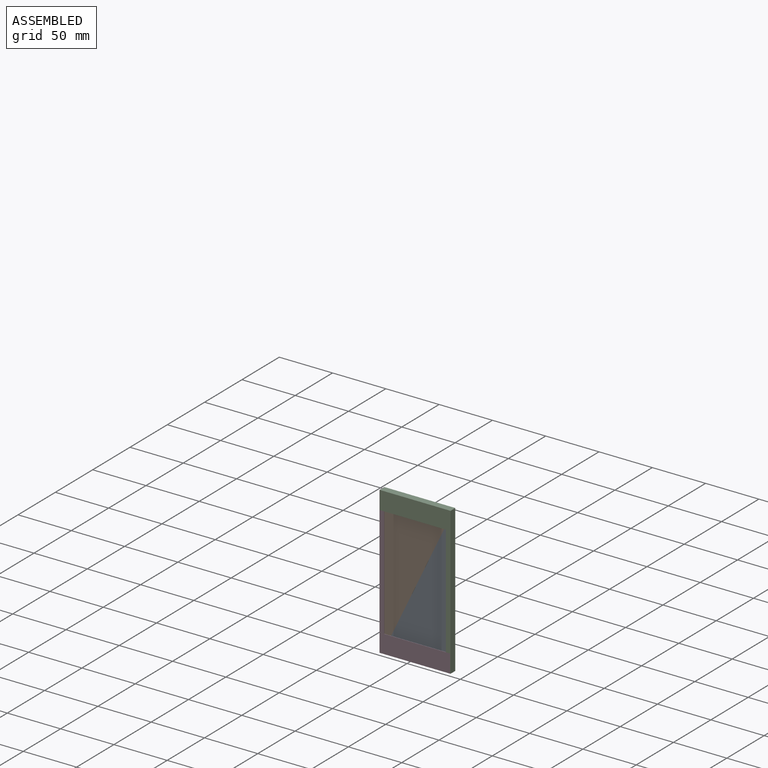
[diagram: assembled view]
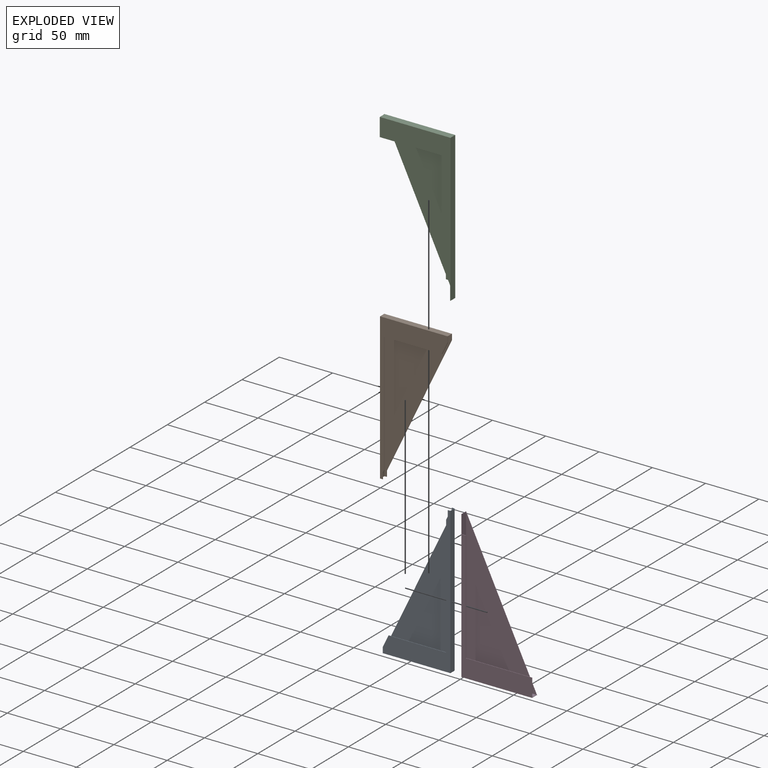
[diagram: exploded view]
GUIDED TOUR — MATED ASSEMBLY (Onshape document 7e31d5cf3b3139a9da430574, AutoMate assembly 7e31d5cf3b3139a9da430574_ac3683a69b79a58ec61ef6b6_3bb154a2da91457d426882a9_default)

This assembly has 4 components, labeled P0..P3 below (a component is one placed occurrence of a part; the same part can appear more than once), held together by 4 mates. A mate is a constraint between two components; its type names the relative motion it leaves free:
  SLIDER — leaves translation along the listed axis free.
Axis/direction vectors are unit vectors and 'through' points are millimeter coordinates, both in the assembly's world frame.

MATES
  1. SLIDER "Slider 4": P0 <-> P2, axis (0.000, 0.000, 1.000) through (40.66, 2.95, 66.40) mm
  2. SLIDER "Slider 2": P0 <-> P3, axis (-1.000, 0.000, 0.000) through (-22.83, 2.95, -71.14) mm
  3. SLIDER "Slider 1": P1 <-> P3, axis (0.000, 0.000, -1.000) through (-25.37, 2.95, -71.14) mm
  4. SLIDER "Slider 3": P1 <-> P2, axis (1.000, 0.000, 0.000) through (38.12, 2.95, 66.40) mm

ASSEMBLY ORDER
  1. P0 — the base component [order heuristic]
  2. P3 [order verified]
  3. P1 — core [order heuristic]
  4. P2 — core [order heuristic]
Order-tag legend:
  [order verified] — this step's position reverses a verified removal order: the component was checked to insert without passing through the ones already placed.
  [order heuristic] — the first 3 components form the assembly's core: parts whose collision-free extraction could not be verified, listed in mate-graph order.

Of the 4 components, 4 carry the full construction recipe — the FeatureScript program that regenerates the part's solid from scratch; the rest are supplied as boundary geometry only.
Each toured component is shown spotlighted twice — in the assembled view, then in the exploded view, where a leader line traces a displaced component back to its assembled socket (saturated green if recipe-attached, orange if geometry-only; every other component desaturated gray) — followed by its recipe or geometry summary and the mates that hold it.
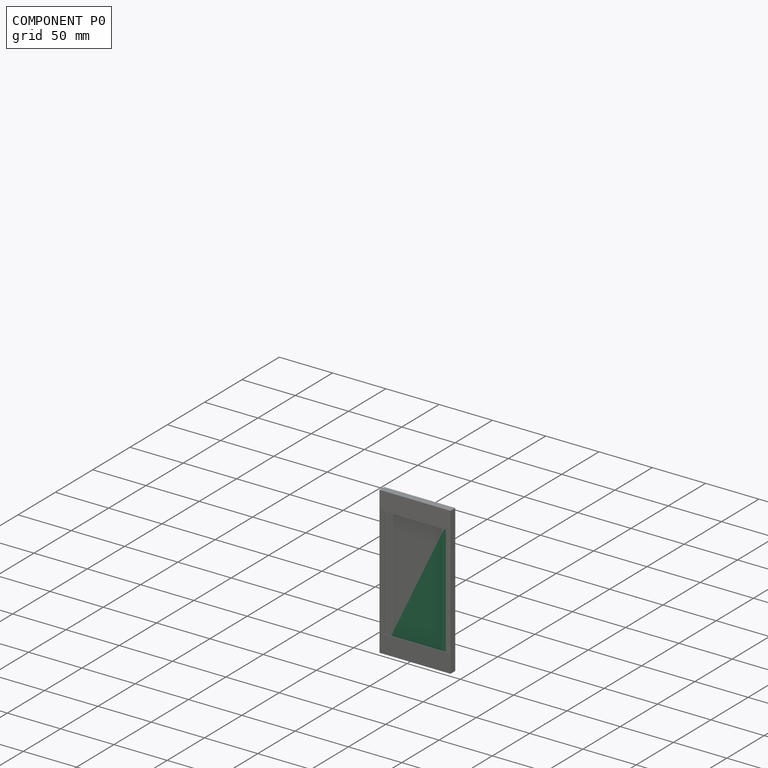
[diagram: component P0 — assembled]
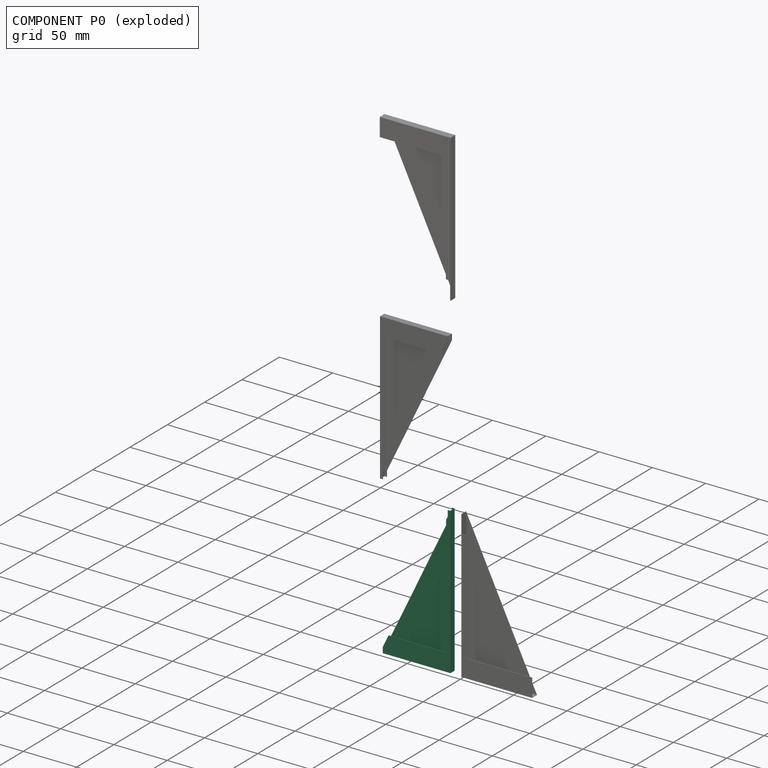
[diagram: component P0 — exploded]
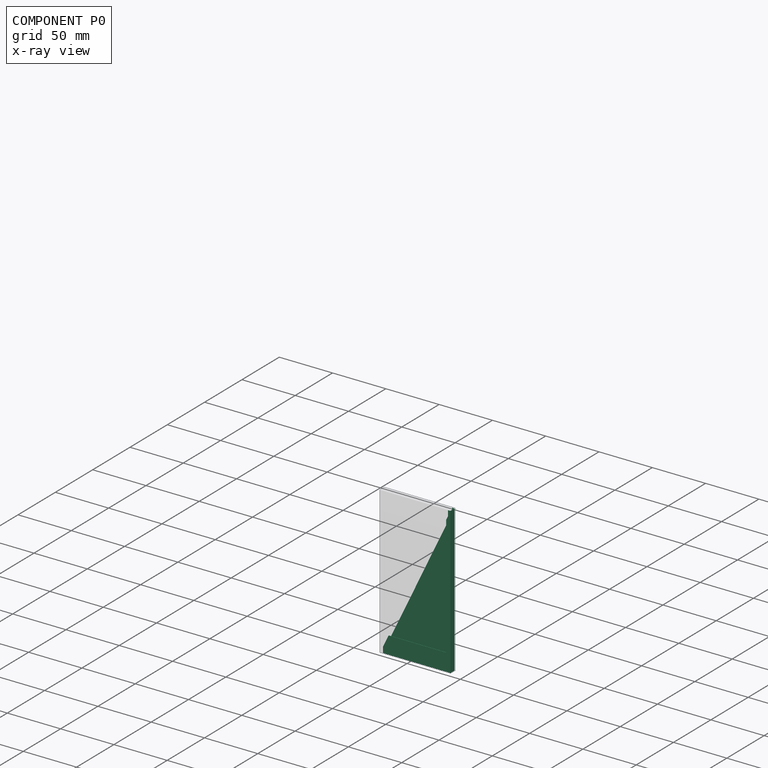
[diagram: component P0 — x-ray view]
COMPONENT P0 — recipe-attached (CADFS 00390571, mesh-verified: the recipe's output STEP matches this component's geometry to below the mesh-comparison resolution (tessellation chordal tolerance ~0.227 mm)).
Held by: SLIDER mate "Slider 4" to P2; SLIDER mate "Slider 2" to P3.
Construction recipe (FeatureScript — the CAD program that rebuilds this solid; sketch coordinates are in the units given by the * unit suffixes, e.g. mm):

FeatureScript 1511;
import(path : "onshape/std/geometry.fs", version : "1511.0");
import(path : "onshape/std/common.fs", version : "1511.0");
const mm = millimeter;
const VERTEX = EntityType.VERTEX;
const EDGE = EntityType.EDGE;
const FACE = EntityType.FACE;
const BODY = EntityType.BODY;
function v(x, y){return vector(x, y);}
function OD(order){return orderDisambiguation(order);}
function OSD(set){return originalSetDisambiguation(set);}
function TD(topology){return topologyDisambiguation(topology);}
function TDD(query){return trueDependencyDisambiguation(query);}
function sQuery(a, b, c) {return sketchEntityQuery(a, b, c);}

annotation { "Feature Type Name" : "Feature", "Feature Type Description" : "" }
export const myFeature = defineFeature(function(context is Context, id is Id, definition is map)
    precondition{}
    {
        {
            var Q0;
            Q0=qCreatedBy(makeId("Front.planeOp"),FACE);
            var sketch = newSketch(context, id + "F0", { "sketchPlane" : qUnion([Q0])});
            skLineSegment(sketch, "E0.top", {"start": v(-33.17, 68.77) * mm, "end": v(30.31, 68.77) * mm});
            skLineSegment(sketch, "E0.left", {"start": v(-33.17, -68.77) * mm, "end": v(-33.17, 68.77) * mm});
            skLineSegment(sketch, "E1", {"start": v(-30.63, -63.48) * mm, "end": v(30.31, 63.5) * mm});
            skLineSegment(sketch, "E2", {"start": v(-33.17, -68.77) * mm, "end": v(-30.63, -68.77) * mm});
            skLineSegment(sketch, "E3", {"start": v(-30.63, -68.77) * mm, "end": v(-30.63, -63.48) * mm});
            skLineSegment(sketch, "E4", {"start": v(30.31, 68.77) * mm, "end": v(30.31, 63.5) * mm});
            skSolve(sketch);
        }
        {
            var Q0;
            Q0 = qSketchRegion(id + "F0", true);
            extrude(context, id + "F1", {"entities" : qUnion([Q0]), "depth" : 5.7 * mm});
        }
        {
            var Q0;
            Q0=makeQuery(id+"F1.opExtrude","CAP_FACE",FACE,{"disambiguationData":[OSD([sQuery(id+"F0.wireOp",EDGE,"E0.top"),sQuery(id+"F0.wireOp",EDGE,"E0.left"),sQuery(id+"F0.wireOp",EDGE,"E1"),sQuery(id+"F0.wireOp",EDGE,"E2"),sQuery(id+"F0.wireOp",EDGE,"E3"),sQuery(id+"F0.wireOp",EDGE,"E4")])],"isStart":false});
            var sketch = newSketch(context, id + "F2", { "sketchPlane" : qUnion([Q0])});
            skLineSegment(sketch, "E5.bottom", {"start": v(-29.18, 52.29) * mm, "end": v(24.93, 52.29) * mm});
            skLineSegment(sketch, "E5.left", {"start": v(-29.18, 52.29) * mm, "end": v(-29.18, -60.45) * mm});
            skLineSegment(sketch, "E6", {"start": v(24.93, 52.29) * mm, "end": v(-29.18, -60.45) * mm});
            skSolve(sketch);
        }
        {
            var Q0;
            Q0 = qSketchRegion(id + "F2", true);
            extrude(context, id + "F3", {"entities" : qUnion([Q0]), "operationType" : NewBodyOperationType.REMOVE, "oppositeDirection" : true, "depth" : 5.4 * mm});
        }
        {
            var Q0;
            Q0=makeQuery(id+"F1.opExtrude","SWEPT_FACE",FACE,{"disambiguationData":[OSD([sQuery(id+"F0.wireOp",EDGE,"E4")])]});
            var sketch = newSketch(context, id + "F4", { "sketchPlane" : qUnion([Q0])});
            skLineSegment(sketch, "E7.bottom", {"start": v(-5.4, 68.45) * mm, "end": v(-0.32, 68.45) * mm});
            skLineSegment(sketch, "E7.top", {"start": v(-5.4, -68.77) * mm, "end": v(-0.32, -68.77) * mm});
            skLineSegment(sketch, "E7.left", {"start": v(-5.4, 68.45) * mm, "end": v(-5.4, -68.77) * mm});
            skLineSegment(sketch, "E7.right", {"start": v(-0.32, 68.45) * mm, "end": v(-0.32, -68.77) * mm});
            skSolve(sketch);
        }
        {
            var Q0;
            Q0 = qSketchRegion(id + "F4", true);
            extrude(context, id + "F5", {"entities" : qUnion([Q0]), "operationType" : NewBodyOperationType.REMOVE, "oppositeDirection" : true, "depth" : 63.17 * mm});
        }
    });
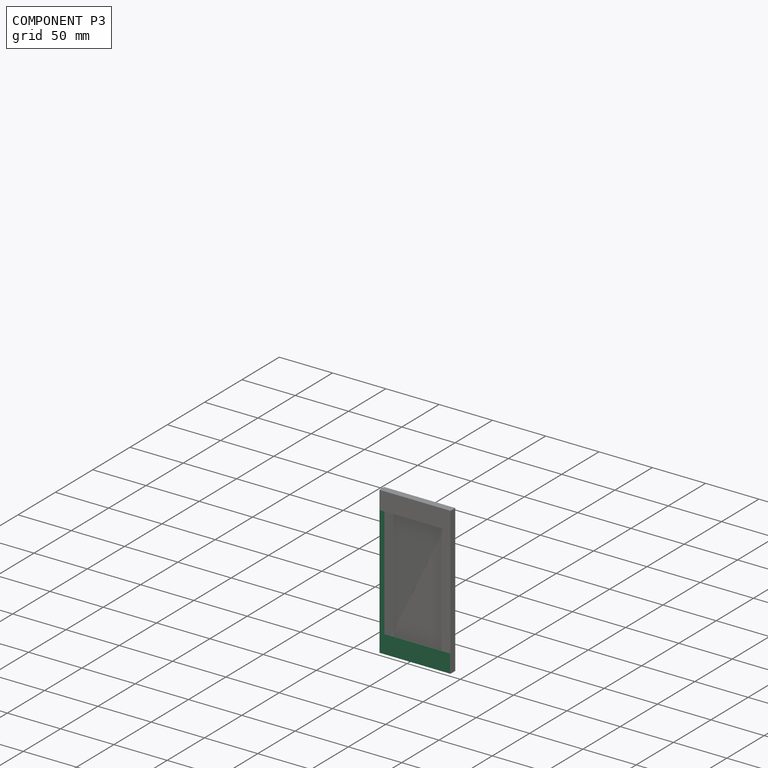
[diagram: component P3 — assembled]
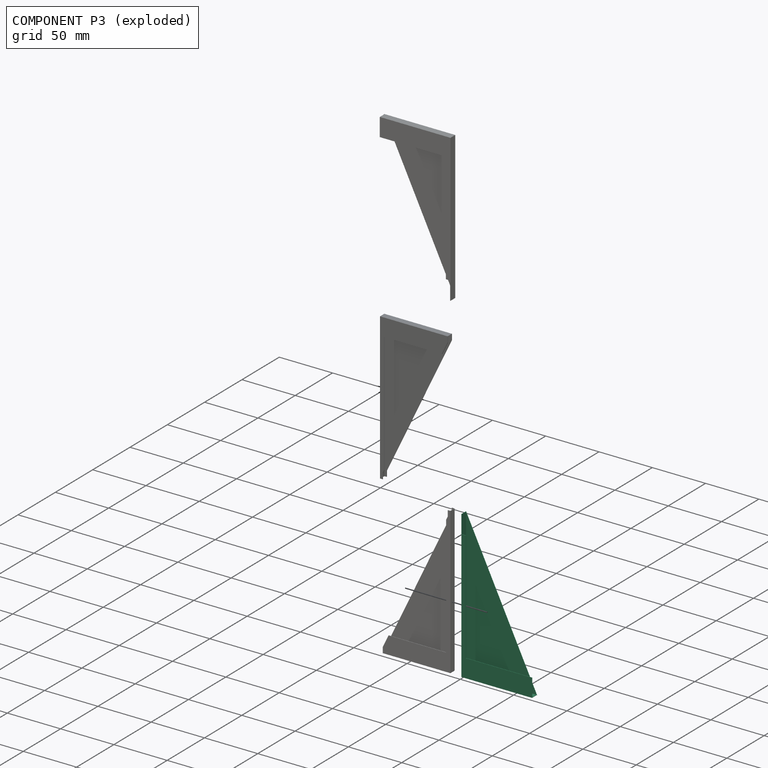
[diagram: component P3 — exploded]
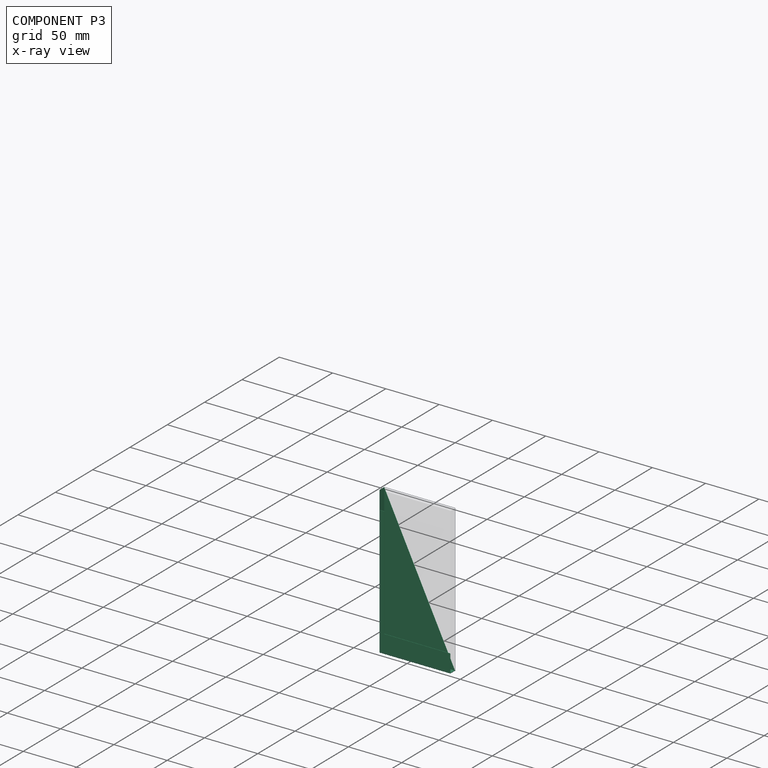
[diagram: component P3 — x-ray view]
COMPONENT P3 — same part as P2 (CADFS 00390570); its construction recipe is shown at P2.
Held by: SLIDER mate "Slider 2" to P0; SLIDER mate "Slider 1" to P1.
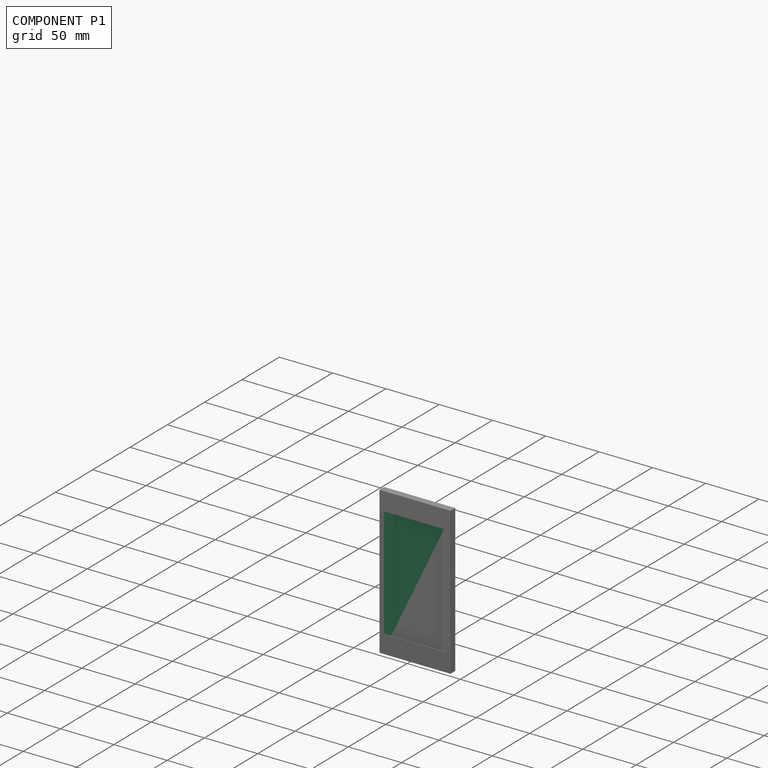
[diagram: component P1 — assembled]
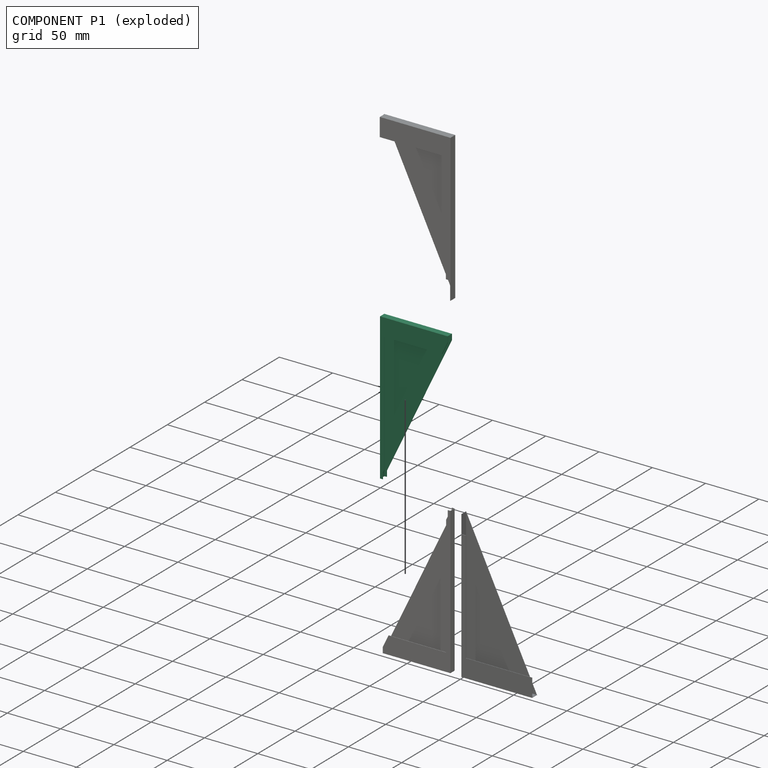
[diagram: component P1 — exploded]
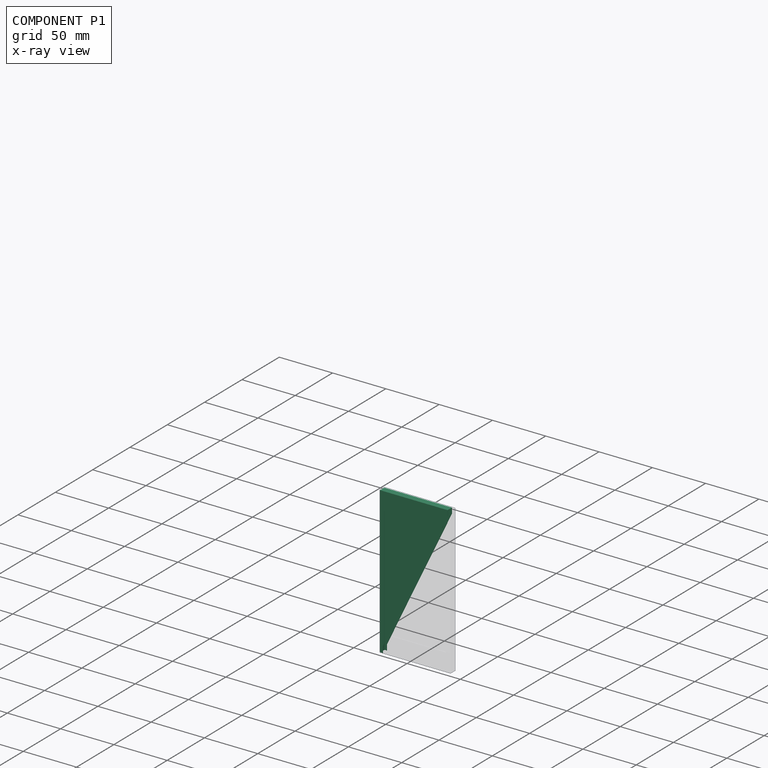
[diagram: component P1 — x-ray view]
COMPONENT P1 — same part as P0 (CADFS 00390571); its construction recipe is shown at P0.
Held by: SLIDER mate "Slider 1" to P3; SLIDER mate "Slider 3" to P2.
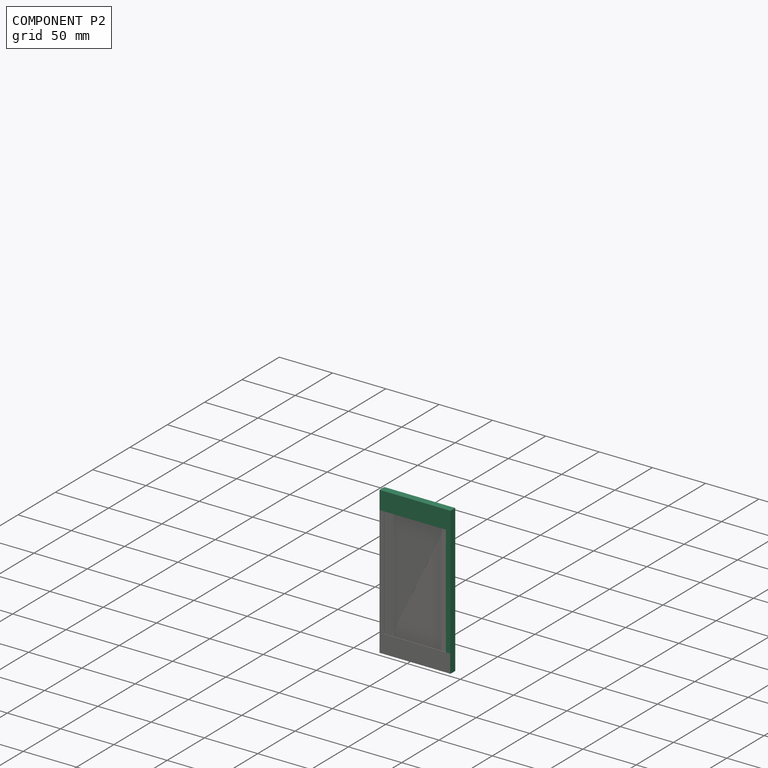
[diagram: component P2 — assembled]
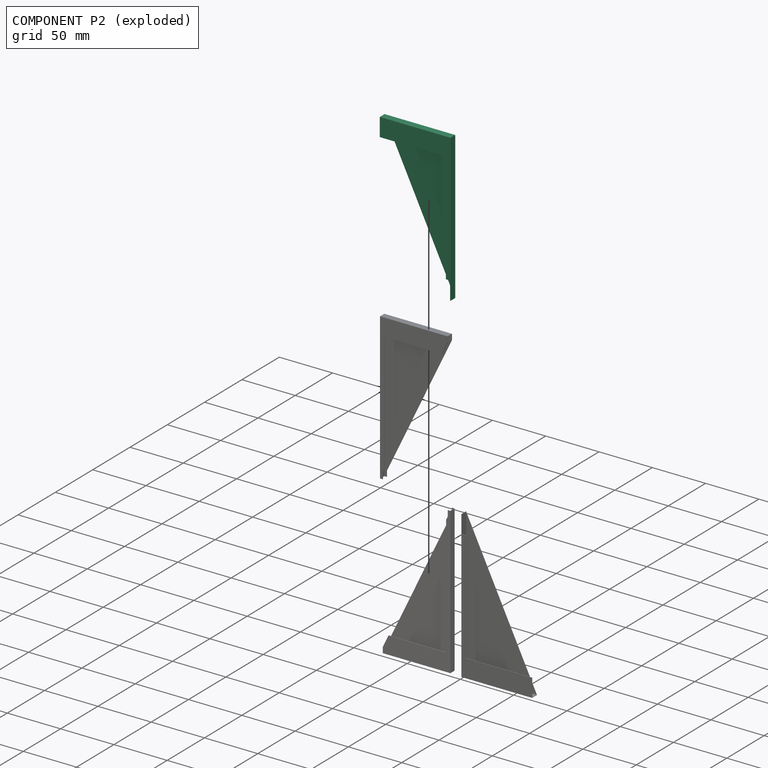
[diagram: component P2 — exploded]
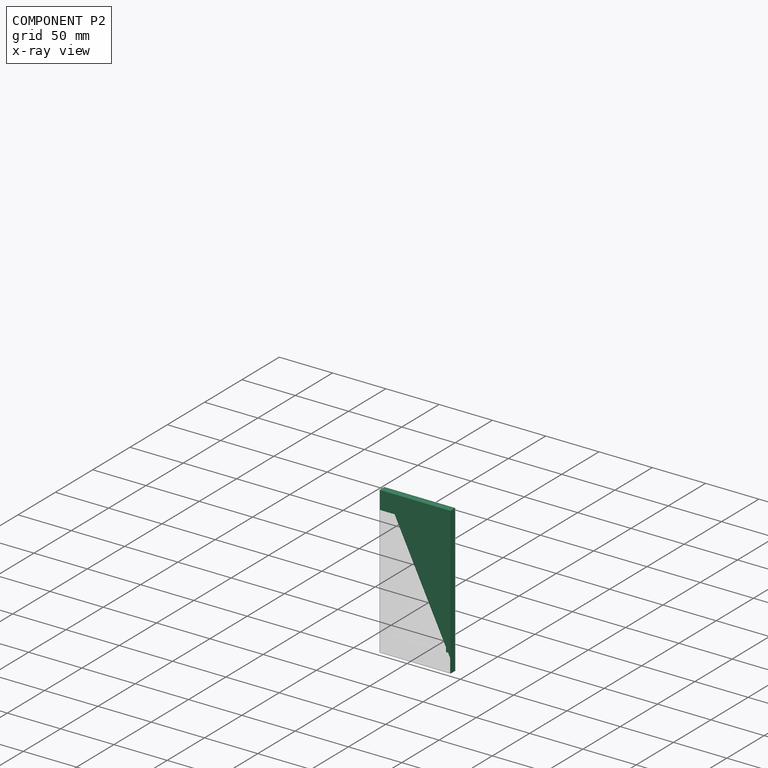
[diagram: component P2 — x-ray view]
COMPONENT P2 — recipe-attached (CADFS 00390570, mesh-verified: the recipe's output STEP matches this component's geometry to below the mesh-comparison resolution (tessellation chordal tolerance ~0.23 mm)).
Held by: SLIDER mate "Slider 4" to P0; SLIDER mate "Slider 3" to P1.
Construction recipe (FeatureScript — the CAD program that rebuilds this solid; sketch coordinates are in the units given by the * unit suffixes, e.g. mm):

FeatureScript 1511;
import(path : "onshape/std/geometry.fs", version : "1511.0");
import(path : "onshape/std/common.fs", version : "1511.0");
const mm = millimeter;
const VERTEX = EntityType.VERTEX;
const EDGE = EntityType.EDGE;
const FACE = EntityType.FACE;
const BODY = EntityType.BODY;
function v(x, y){return vector(x, y);}
function OD(order){return orderDisambiguation(order);}
function OSD(set){return originalSetDisambiguation(set);}
function TD(topology){return topologyDisambiguation(topology);}
function TDD(query){return trueDependencyDisambiguation(query);}
function sQuery(a, b, c) {return sketchEntityQuery(a, b, c);}

annotation { "Feature Type Name" : "Feature", "Feature Type Description" : "" }
export const myFeature = defineFeature(function(context is Context, id is Id, definition is map)
    precondition{}
    {
        {
            var Q0;
            Q0=qCreatedBy(makeId("Front.planeOp"),FACE);
            var sketch = newSketch(context, id + "F0", { "sketchPlane" : qUnion([Q0])});
            skLineSegment(sketch, "E0.bottom", {"start": v(-33.53, -69.09) * mm, "end": v(33.13, -69.09) * mm});
            skLineSegment(sketch, "E0.left", {"start": v(-33.53, -69.09) * mm, "end": v(-33.53, 69.09) * mm});
            skLineSegment(sketch, "E1", {"start": v(-29.22, -51.97) * mm, "end": v(-29.22, 60.15) * mm});
            skLineSegment(sketch, "E2", {"start": v(-29.22, -51.97) * mm, "end": v(33.13, -51.97) * mm});
            skLineSegment(sketch, "E3", {"start": v(-29.22, 60.15) * mm, "end": v(-29.22, 69.09) * mm});
            skLineSegment(sketch, "E4", {"start": v(-29.22, 69.09) * mm, "end": v(-33.53, 69.09) * mm});
            skLineSegment(sketch, "E5", {"start": v(33.13, -51.97) * mm, "end": v(33.13, -69.09) * mm});
            skSolve(sketch);
        }
        {
            var Q0;
            Q0 = qSketchRegion(id + "F0", true);
            extrude(context, id + "F1", {"entities" : qUnion([Q0]), "depth" : 6.35 * mm});
        }
        {
            var Q0;
            Q0=qCreatedBy(makeId("Right.planeOp"),FACE);
            var sketch = newSketch(context, id + "F2", { "sketchPlane" : qUnion([Q0])});
            skLineSegment(sketch, "E6.bottom", {"start": v(-6.03, 51.97) * mm, "end": v(-0.32, 51.97) * mm});
            skLineSegment(sketch, "E6.top", {"start": v(-6.03, 68.77) * mm, "end": v(-0.32, 68.77) * mm});
            skLineSegment(sketch, "E6.left", {"start": v(-6.03, 51.97) * mm, "end": v(-6.03, 68.77) * mm});
            skLineSegment(sketch, "E6.right", {"start": v(-0.32, 51.97) * mm, "end": v(-0.32, 68.77) * mm});
            skLineSegment(sketch, "E7.bottom", {"start": v(-0.32, -51.97) * mm, "end": v(-6.03, -51.97) * mm});
            skLineSegment(sketch, "E7.top", {"start": v(-6.03, -68.77) * mm, "end": v(-0.32, -68.77) * mm});
            skLineSegment(sketch, "E7.left", {"start": v(-6.03, -51.97) * mm, "end": v(-6.03, -68.77) * mm});
            skLineSegment(sketch, "E7.right", {"start": v(-0.32, -51.97) * mm, "end": v(-0.32, -68.77) * mm});
            skSolve(sketch);
        }
        {
            var Q0;
            Q0 = qSketchRegion(id + "F2", true);
            extrude(context, id + "F3", {"entities" : qUnion([Q0]), "operationType" : NewBodyOperationType.REMOVE, "endBound" : BoundingType.SYMMETRIC, "oppositeDirection" : true, "depth" : 66.02 * mm});
        }
        {
            var Q0;
            Q0=qCreatedBy(makeId("Top.planeOp"),FACE);
            var sketch = newSketch(context, id + "F4", { "sketchPlane" : qUnion([Q0])});
            skLineSegment(sketch, "E8.bottom", {"start": v(-33.21, -0.32) * mm, "end": v(-29.22, -0.32) * mm});
            skLineSegment(sketch, "E8.top", {"start": v(-33.21, -6.03) * mm, "end": v(-29.22, -6.03) * mm});
            skLineSegment(sketch, "E8.left", {"start": v(-33.21, -6.03) * mm, "end": v(-33.21, -0.32) * mm});
            skLineSegment(sketch, "E8.right", {"start": v(-29.22, -0.32) * mm, "end": v(-29.22, -6.03) * mm});
            skSolve(sketch);
        }
        {
            var Q0;
            Q0 = qSketchRegion(id + "F4", true);
            extrude(context, id + "F5", {"entities" : qUnion([Q0]), "operationType" : NewBodyOperationType.REMOVE, "endBound" : BoundingType.SYMMETRIC, "oppositeDirection" : true, "depth" : 137.54 * mm});
        }
        {
            var Q0;
            {var subQ1=sQuery(id+"F0.wireOp",EDGE,"E1");Q0=makeQuery(id+"F5.boolean.opBoolean","SPLIT",FACE,{"disambiguationData":[TD([makeQuery(id+"F3.boolean.opBoolean","COPY",FACE,{"derivedFrom":makeQuery(id+"F3.opExtrude","SWEPT_FACE",FACE,{"disambiguationData":[OSD([sQuery(id+"F2.wireOp",EDGE,"E6.right")])]})})])],"derivedFrom":makeQuery(id+"F1.opExtrude","SWEPT_FACE",FACE,{"disambiguationData":[OSD([subQ1])]})});}
            var sketch = newSketch(context, id + "F6", { "sketchPlane" : qUnion([Q0])});
            skLineSegment(sketch, "E9.bottom", {"start": v(-0.32, 69.09) * mm, "end": v(0, 69.09) * mm});
            skLineSegment(sketch, "E9.top", {"start": v(-0.32, -69.09) * mm, "end": v(0, -69.09) * mm});
            skLineSegment(sketch, "E9.left", {"start": v(-0.32, 69.09) * mm, "end": v(-0.32, -69.09) * mm});
            skLineSegment(sketch, "E9.right", {"start": v(0, 69.09) * mm, "end": v(0, -69.09) * mm});
            skSolve(sketch);
        }
        {
            var Q0;
            Q0 = qSketchRegion(id + "F6", true);
            extrude(context, id + "F7", {"entities" : qUnion([Q0]), "operationType" : NewBodyOperationType.ADD, "depth" : 63.5 * mm});
        }
        {
            var Q0;
            Q0=makeQuery(id+"F1.opExtrude","SWEPT_FACE",FACE,{"disambiguationData":[OSD([sQuery(id+"F0.wireOp",EDGE,"E5")])]});
            var sketch = newSketch(context, id + "F8", { "sketchPlane" : qUnion([Q0])});
            skLineSegment(sketch, "E10.bottom", {"start": v(-6.03, -68.77) * mm, "end": v(-0.32, -68.77) * mm});
            skLineSegment(sketch, "E10.top", {"start": v(-6.03, -51.97) * mm, "end": v(-0.32, -51.97) * mm});
            skLineSegment(sketch, "E10.left", {"start": v(-6.03, -68.77) * mm, "end": v(-6.03, -51.97) * mm});
            skLineSegment(sketch, "E10.right", {"start": v(-0.32, -68.77) * mm, "end": v(-0.32, -52.37) * mm});
            skLineSegment(sketch, "E11", {"start": v(-0.32, -52.37) * mm, "end": v(-0.32, -51.97) * mm});
            skSolve(sketch);
        }
        {
            var Q0;
            Q0 = qSketchRegion(id + "F8", true);
            extrude(context, id + "F9", {"entities" : qUnion([Q0]), "operationType" : NewBodyOperationType.REMOVE, "oppositeDirection" : true, "depth" : 25.4 * mm});
        }
        {
            var Q0;
            Q0=makeQuery(id+"F5.boolean.opBoolean","COPY",FACE,{"derivedFrom":makeQuery(id+"F5.opExtrude","SWEPT_FACE",FACE,{"disambiguationData":[OSD([sQuery(id+"F4.wireOp",EDGE,"E8.left")])]})});
            var sketch = newSketch(context, id + "F10", { "sketchPlane" : qUnion([Q0])});
            skLineSegment(sketch, "E12.bottom", {"start": v(-0.32, 70.36) * mm, "end": v(-6.35, 70.36) * mm});
            skLineSegment(sketch, "E12.top", {"start": v(-0.32, 51.97) * mm, "end": v(-6.35, 51.97) * mm});
            skLineSegment(sketch, "E12.left", {"start": v(-0.32, 70.36) * mm, "end": v(-0.32, 51.97) * mm});
            skLineSegment(sketch, "E12.right", {"start": v(-6.35, 70.36) * mm, "end": v(-6.35, 51.97) * mm});
            skSolve(sketch);
        }
        {
            var Q0;
            Q0 = qSketchRegion(id + "F10", true);
            extrude(context, id + "F11", {"entities" : qUnion([Q0]), "operationType" : NewBodyOperationType.REMOVE, "endBound" : BoundingType.THROUGH_ALL, "depth" : 25.4 * mm});
        }
        {
            var Q0;
            Q0=makeQuery(id+"F7.boolean.opBoolean","MERGE",FACE,{"derivedFrom":[makeQuery(id+"F1.opExtrude","CAP_FACE",FACE,{"disambiguationData":[OSD([sQuery(id+"F0.wireOp",EDGE,"E0.bottom"),sQuery(id+"F0.wireOp",EDGE,"E0.left"),sQuery(id+"F0.wireOp",EDGE,"E1"),sQuery(id+"F0.wireOp",EDGE,"E2"),sQuery(id+"F0.wireOp",EDGE,"E3"),sQuery(id+"F0.wireOp",EDGE,"E4"),sQuery(id+"F0.wireOp",EDGE,"E5")])],"isStart":true}),makeQuery(id+"F7.opExtrude","SWEPT_FACE",FACE,{"disambiguationData":[OSD([sQuery(id+"F6.wireOp",EDGE,"E9.right")])]})]});
            var sketch = newSketch(context, id + "F12", { "sketchPlane" : qUnion([Q0])});
            skPoint(sketch, "E13.end.orphan", {"position": v(-34.28, -69.09) * mm});
            skLineSegment(sketch, "E14", {"start": v(-34.28, 69.09) * mm, "end": v(-34.28, -69.09) * mm});
            skLineSegment(sketch, "E15", {"start": v(-34.28, 69.09) * mm, "end": v(33.53, 69.09) * mm});
            skLineSegment(sketch, "E16", {"start": v(-34.28, -69.09) * mm, "end": v(-33.13, -69.09) * mm});
            skLineSegment(sketch, "E17", {"start": v(-33.13, -69.09) * mm, "end": v(33.53, 69.09) * mm});
            skSolve(sketch);
        }
        {
            var Q0;
            Q0 = qSketchRegion(id + "F12", true);
            extrude(context, id + "F13", {"entities" : qUnion([Q0]), "operationType" : NewBodyOperationType.REMOVE, "oppositeDirection" : true, "depth" : 0.32 * mm});
        }
        {
            var Q0;
            Q0=makeQuery(id+"F1.opExtrude","CAP_FACE",FACE,{"disambiguationData":[OSD([sQuery(id+"F0.wireOp",EDGE,"E0.bottom"),sQuery(id+"F0.wireOp",EDGE,"E0.left"),sQuery(id+"F0.wireOp",EDGE,"E1"),sQuery(id+"F0.wireOp",EDGE,"E2"),sQuery(id+"F0.wireOp",EDGE,"E3"),sQuery(id+"F0.wireOp",EDGE,"E4"),sQuery(id+"F0.wireOp",EDGE,"E5")])],"isStart":false});
            var sketch = newSketch(context, id + "F14", { "sketchPlane" : qUnion([Q0])});
            skLineSegment(sketch, "E18.bottom", {"start": v(33.13, -69.09) * mm, "end": v(32.81, -69.09) * mm});
            skLineSegment(sketch, "E18.top", {"start": v(33.13, -51.97) * mm, "end": v(32.81, -51.97) * mm});
            skLineSegment(sketch, "E18.left", {"start": v(33.13, -69.09) * mm, "end": v(33.13, -51.97) * mm});
            skLineSegment(sketch, "E18.right", {"start": v(32.81, -69.09) * mm, "end": v(32.81, -51.97) * mm});
            skSolve(sketch);
        }
        {
            var Q0;
            Q0 = qSketchRegion(id + "F14", true);
            var Q1;
            Q1=makeQuery(id+"F11.boolean.opBoolean","MERGE",FACE,{"derivedFrom":[makeQuery(id+"F9.boolean.opBoolean","MERGE",FACE,{"derivedFrom":[makeQuery(id+"F7.boolean.opBoolean","MERGE",FACE,{"derivedFrom":[makeQuery(id+"F5.boolean.opBoolean","MERGE",FACE,{"derivedFrom":[makeQuery(id+"F3.boolean.opBoolean","COPY",FACE,{"derivedFrom":makeQuery(id+"F3.opExtrude","SWEPT_FACE",FACE,{"disambiguationData":[OSD([sQuery(id+"F2.wireOp",EDGE,"E6.right")])]})}),makeQuery(id+"F3.boolean.opBoolean","COPY",FACE,{"derivedFrom":makeQuery(id+"F3.opExtrude","SWEPT_FACE",FACE,{"disambiguationData":[OSD([sQuery(id+"F2.wireOp",EDGE,"E7.right")])]})}),makeQuery(id+"F5.opExtrude","SWEPT_FACE",FACE,{"disambiguationData":[OSD([sQuery(id+"F4.wireOp",EDGE,"E8.bottom")])]})]}),makeQuery(id+"F7.opExtrude","SWEPT_FACE",FACE,{"disambiguationData":[OSD([sQuery(id+"F6.wireOp",EDGE,"E9.left")])]})]}),makeQuery(id+"F9.opExtrude","SWEPT_FACE",FACE,{"disambiguationData":[OSD([sQuery(id+"F8.wireOp",EDGE,"E10.right"),sQuery(id+"F8.wireOp",EDGE,"E11")])]})]}),makeQuery(id+"F11.opExtrude","SWEPT_FACE",FACE,{"disambiguationData":[OSD([sQuery(id+"F10.wireOp",EDGE,"E12.left")])]})]});
            extrude(context, id + "F15", {"entities" : qUnion([Q0]), "operationType" : NewBodyOperationType.REMOVE, "endBound" : BoundingType.UP_TO_SURFACE, "oppositeDirection" : true, "endBoundEntityFace" : qUnion([Q1]), "depth" : 25.4 * mm});
        }
    });
PROVENANCE & LICENSES
Assembly (occurrences, transforms, mates, per-part STEP geometry): AutoMate dataset, Zenodo record 7776208, CC0.
Construction recipes: CADFS (HuggingFace VladPyatov/CADFS, CC-BY-4.0, layered over the ABC dataset), FeatureScript reconstruction programs keyed by ABC model id.
Join: ABC meta listings map ABC model id -> Onshape documentId; within a shared document, parts are matched by geometric signature (bounding-box dims + volume at 0.1% relative tolerance, exact B-rep face/solid counts).
Verification: 4 of this assembly's 4 components carry a recipe attachment, and every attachment is mesh-verified: the CADFS STEP and the AutoMate member STEP were compared as meshes in their shared local frame (symmetric sampled-point-to-mesh distance); worst across the 4 attachments: below the mesh-comparison resolution (tessellation chordal tolerance ~0.23 mm) on a 154 mm part.
Renders: orthographic iso camera (az 35 / el 25); the floor grid conveys scale (grid pitch printed in each image; no ruler). In the exploded view each component is displaced by its stored offset vector: the offsets alone carry the explosion direction (mate normal/axis signs are not orientation cues and do not encode it), and separation distances are assigned per mate-chain, not proportionally to assembly-order depth.
